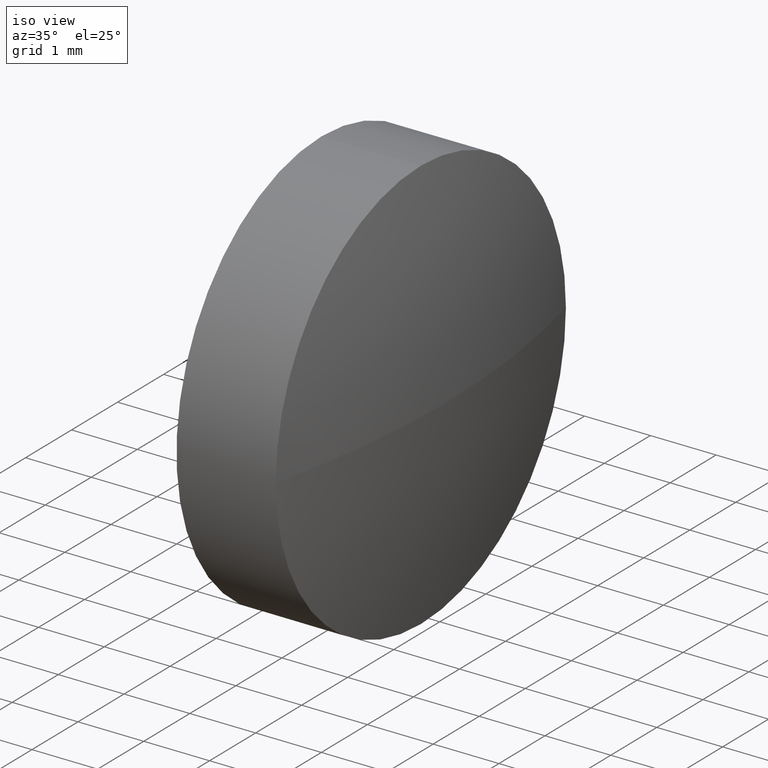
[diagram: clean part render]
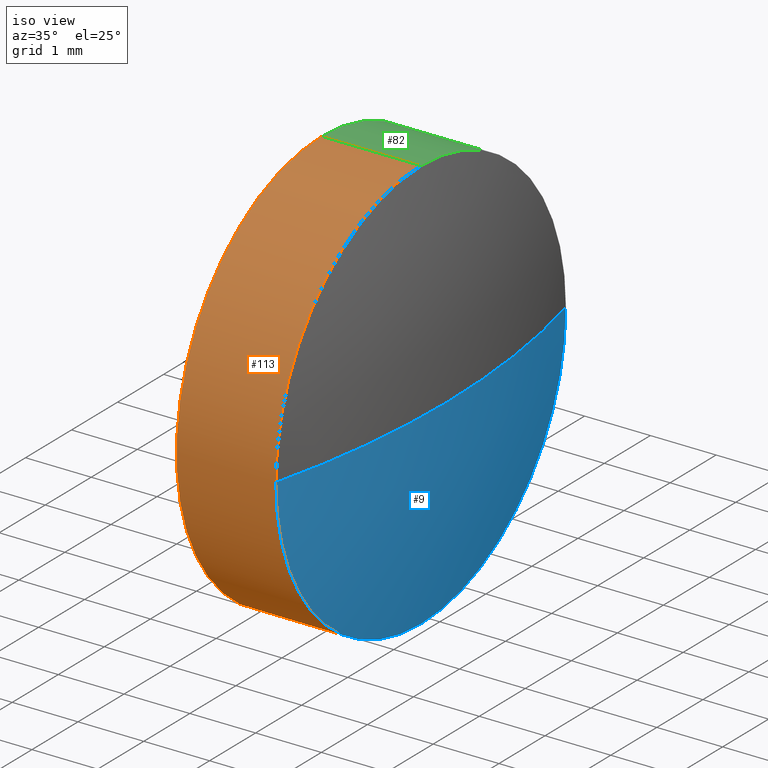
[diagram: same view with three faces highlighted in distinct colors, each labeled with its STEP entity id]
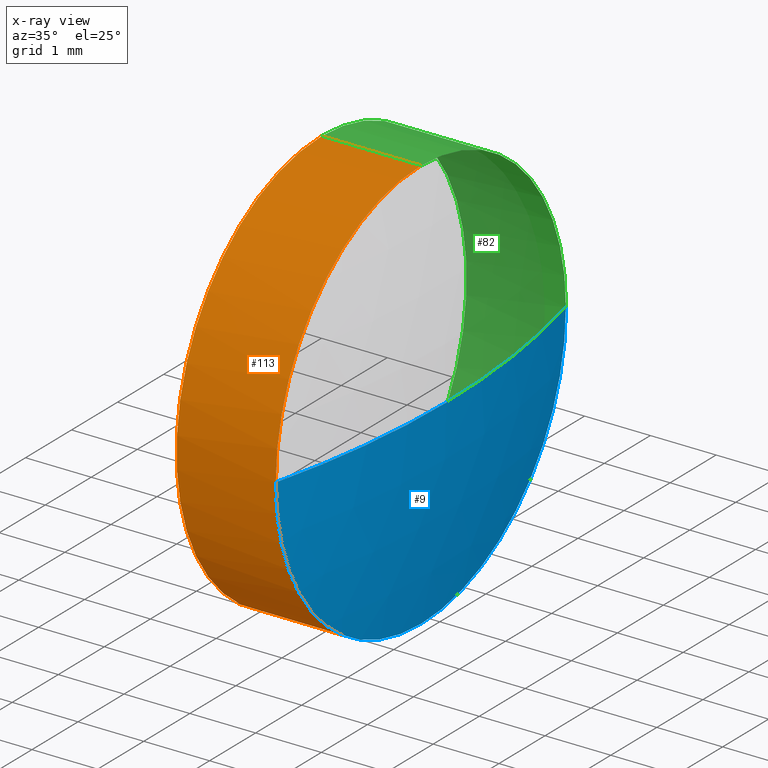
[diagram: x-ray of the same camera — body ghosted, the three highlighted faces saturated]
A machine part, iso view with three faces highlighted in distinct colors.
The next image is the same camera in x-ray (body ghosted, the three faces saturated) — at least one of them is partly hidden behind the body in this view.
Their STEP definitions:

[orange] entity #113 — the highlighted cylindrical surface (partial cylindrical patch) has radius 3.15 mm, axis along (-1, -0, -0).
#5 = CARTESIAN_POINT ( 'NONE',  ( 616.6993345842506600, 86.56717814228176200, 0.0000000000000000000 ) ) ;
#6 = CIRCLE ( 'NONE', #175, 3.149999999999999900 ) ;
#12 = CARTESIAN_POINT ( 'NONE',  ( 619.0150449967926500, 86.56717814228176200, 0.0000000000000000000 ) ) ;
#13 = ORIENTED_EDGE ( 'NONE', *, *, #124, .T. ) ;
#18 = DIRECTION ( 'NONE',  ( 0.0000000000000000000, 0.0000000000000000000, 1.000000000000000000 ) ) ;
#20 = ORIENTED_EDGE ( 'NONE', *, *, #153, .F. ) ;
#25 = EDGE_LOOP ( 'NONE', ( #30, #74, #13, #86, #20 ) ) ;
#30 = ORIENTED_EDGE ( 'NONE', *, *, #119, .F. ) ;
#31 = VECTOR ( 'NONE', #136, 1000.000000000000000 ) ;
#35 = CARTESIAN_POINT ( 'NONE',  ( 619.0150449967926500, 86.56717814228176200, -3.149999999999999900 ) ) ;
#37 = CARTESIAN_POINT ( 'NONE',  ( 619.0150449967926500, 86.56717814228176200, 3.149999999999999900 ) ) ;
#42 = LINE ( 'NONE', #120, #31 ) ;
#45 = AXIS2_PLACEMENT_3D ( 'NONE', #12, #71, #166 ) ;
#52 = AXIS2_PLACEMENT_3D ( 'NONE', #5, #177, #18 ) ;
#61 = VERTEX_POINT ( 'NONE', #114 ) ;
#63 = VERTEX_POINT ( 'NONE', #37 ) ;
#69 = CARTESIAN_POINT ( 'NONE',  ( 619.0150449967926500, 83.41717814228191200, 0.0000000000000000000 ) ) ;
#71 = DIRECTION ( 'NONE',  ( -1.000000000000000000, -0.0000000000000000000, -0.0000000000000000000 ) ) ;
#74 = ORIENTED_EDGE ( 'NONE', *, *, #185, .T. ) ;
#79 = DIRECTION ( 'NONE',  ( -1.000000000000000000, -0.0000000000000000000, -0.0000000000000000000 ) ) ;
#86 = ORIENTED_EDGE ( 'NONE', *, *, #132, .T. ) ;
#91 = DIRECTION ( 'NONE',  ( -1.000000000000000000, -0.0000000000000000000, -0.0000000000000000000 ) ) ;
#96 = CIRCLE ( 'NONE', #186, 3.149999999999999900 ) ;
#105 = VERTEX_POINT ( 'NONE', #35 ) ;
#109 = CYLINDRICAL_SURFACE ( 'NONE', #52, 3.149999999999999900 ) ;
#113 = ADVANCED_FACE ( 'NONE', ( #152 ), #109, .T. ) ;
#114 = CARTESIAN_POINT ( 'NONE',  ( 617.5050449967925500, 86.56717814228176200, 3.149999999999999900 ) ) ;
#119 = EDGE_CURVE ( 'NONE', #105, #128, #131, .T. ) ;
#120 = CARTESIAN_POINT ( 'NONE',  ( 616.6993345842506600, 86.56717814228176200, 3.149999999999999900 ) ) ;
#124 = EDGE_CURVE ( 'NONE', #155, #63, #6, .T. ) ;
#126 = CARTESIAN_POINT ( 'NONE',  ( 616.6993345842506600, 86.56717814228176200, -3.149999999999999900 ) ) ;
#128 = VERTEX_POINT ( 'NONE', #134 ) ;
#131 = LINE ( 'NONE', #126, #162 ) ;
#132 = EDGE_CURVE ( 'NONE', #63, #61, #42, .T. ) ;
#133 = DIRECTION ( 'NONE',  ( 0.0000000000000000000, 0.0000000000000000000, 1.000000000000000000 ) ) ;
#134 = CARTESIAN_POINT ( 'NONE',  ( 617.5050449967925500, 86.56717814228176200, -3.149999999999999900 ) ) ;
#136 = DIRECTION ( 'NONE',  ( -1.000000000000000000, -0.0000000000000000000, -0.0000000000000000000 ) ) ;
#145 = CARTESIAN_POINT ( 'NONE',  ( 619.0150449967926500, 86.56717814228176200, 0.0000000000000000000 ) ) ;
#148 = DIRECTION ( 'NONE',  ( 0.0000000000000000000, 0.0000000000000000000, 1.000000000000000000 ) ) ;
#152 = FACE_OUTER_BOUND ( 'NONE', #25, .T. ) ;
#153 = EDGE_CURVE ( 'NONE', #128, #61, #96, .T. ) ;
#155 = VERTEX_POINT ( 'NONE', #69 ) ;
#162 = VECTOR ( 'NONE', #164, 1000.000000000000000 ) ;
#164 = DIRECTION ( 'NONE',  ( -1.000000000000000000, -0.0000000000000000000, -0.0000000000000000000 ) ) ;
#166 = DIRECTION ( 'NONE',  ( 0.0000000000000000000, 0.0000000000000000000, 1.000000000000000000 ) ) ;
#170 = CIRCLE ( 'NONE', #45, 3.149999999999999900 ) ;
#175 = AXIS2_PLACEMENT_3D ( 'NONE', #145, #91, #133 ) ;
#177 = DIRECTION ( 'NONE',  ( -1.000000000000000000, -0.0000000000000000000, -0.0000000000000000000 ) ) ;
#181 = CARTESIAN_POINT ( 'NONE',  ( 617.5050449967925500, 86.56717814228176200, 0.0000000000000000000 ) ) ;
#185 = EDGE_CURVE ( 'NONE', #105, #155, #170, .T. ) ;
#186 = AXIS2_PLACEMENT_3D ( 'NONE', #181, #79, #148 ) ;

[blue] entity #9 — the highlighted spherical surface has radius 12.9162 mm.
#4 = AXIS2_PLACEMENT_3D ( 'NONE', #104, #184, #106 ) ;
#9 = ADVANCED_FACE ( 'NONE', ( #16 ), #151, .T. ) ;
#10 = CARTESIAN_POINT ( 'NONE',  ( 606.4888911506387800, 86.56717814228196100, 0.0000000000000000000 ) ) ;
#12 = CARTESIAN_POINT ( 'NONE',  ( 619.0150449967926500, 86.56717814228176200, 0.0000000000000000000 ) ) ;
#16 = FACE_OUTER_BOUND ( 'NONE', #141, .T. ) ;
#26 = DIRECTION ( 'NONE',  ( 0.0000000000000000000, 0.0000000000000000000, -1.000000000000000000 ) ) ;
#28 = AXIS2_PLACEMENT_3D ( 'NONE', #44, #167, #144 ) ;
#35 = CARTESIAN_POINT ( 'NONE',  ( 619.0150449967926500, 86.56717814228176200, -3.149999999999999900 ) ) ;
#38 = DIRECTION ( 'NONE',  ( -1.000000000000000000, 0.0000000000000000000, 0.0000000000000000000 ) ) ;
#44 = CARTESIAN_POINT ( 'NONE',  ( 606.4888911506387800, 86.56717814228196100, 0.0000000000000000000 ) ) ;
#45 = AXIS2_PLACEMENT_3D ( 'NONE', #12, #71, #166 ) ;
#48 = CIRCLE ( 'NONE', #161, 12.91615384615385400 ) ;
#51 = ORIENTED_EDGE ( 'NONE', *, *, #157, .F. ) ;
#66 = CARTESIAN_POINT ( 'NONE',  ( 619.4050449967926400, 86.56717814228196100, 0.0000000000000000000 ) ) ;
#67 = CIRCLE ( 'NONE', #4, 3.149999999999999900 ) ;
#69 = CARTESIAN_POINT ( 'NONE',  ( 619.0150449967926500, 83.41717814228191200, 0.0000000000000000000 ) ) ;
#71 = DIRECTION ( 'NONE',  ( -1.000000000000000000, -0.0000000000000000000, -0.0000000000000000000 ) ) ;
#73 = AXIS2_PLACEMENT_3D ( 'NONE', #10, #143, #160 ) ;
#85 = CIRCLE ( 'NONE', #28, 12.91615384615382700 ) ;
#97 = ORIENTED_EDGE ( 'NONE', *, *, #185, .F. ) ;
#104 = CARTESIAN_POINT ( 'NONE',  ( 619.0150449967926500, 86.56717814228176200, 0.0000000000000000000 ) ) ;
#105 = VERTEX_POINT ( 'NONE', #35 ) ;
#106 = DIRECTION ( 'NONE',  ( 0.0000000000000000000, 0.0000000000000000000, 1.000000000000000000 ) ) ;
#107 = CARTESIAN_POINT ( 'NONE',  ( 606.4888911506387800, 86.56717814228196100, 0.0000000000000000000 ) ) ;
#116 = VERTEX_POINT ( 'NONE', #66 ) ;
#121 = EDGE_CURVE ( 'NONE', #116, #155, #48, .T. ) ;
#125 = ORIENTED_EDGE ( 'NONE', *, *, #149, .F. ) ;
#141 = EDGE_LOOP ( 'NONE', ( #125, #172, #97, #51 ) ) ;
#142 = CARTESIAN_POINT ( 'NONE',  ( 619.0150449967926500, 89.71717814228181000, 3.857637417313981300E-016 ) ) ;
#143 = DIRECTION ( 'NONE',  ( 0.0000000000000000000, 0.0000000000000000000, 1.000000000000000000 ) ) ;
#144 = DIRECTION ( 'NONE',  ( 0.0000000000000000000, -1.000000000000000000, -1.224646799147353700E-016 ) ) ;
#149 = EDGE_CURVE ( 'NONE', #116, #168, #85, .T. ) ;
#151 = SPHERICAL_SURFACE ( 'NONE', #73, 12.91615384615383100 ) ;
#155 = VERTEX_POINT ( 'NONE', #69 ) ;
#157 = EDGE_CURVE ( 'NONE', #168, #105, #67, .T. ) ;
#160 = DIRECTION ( 'NONE',  ( 0.0000000000000000000, -1.000000000000000000, 0.0000000000000000000 ) ) ;
#161 = AXIS2_PLACEMENT_3D ( 'NONE', #107, #26, #38 ) ;
#166 = DIRECTION ( 'NONE',  ( 0.0000000000000000000, 0.0000000000000000000, 1.000000000000000000 ) ) ;
#167 = DIRECTION ( 'NONE',  ( 0.0000000000000000000, -1.224646799147353200E-016, 1.000000000000000000 ) ) ;
#168 = VERTEX_POINT ( 'NONE', #142 ) ;
#170 = CIRCLE ( 'NONE', #45, 3.149999999999999900 ) ;
#172 = ORIENTED_EDGE ( 'NONE', *, *, #121, .T. ) ;
#184 = DIRECTION ( 'NONE',  ( -1.000000000000000000, -0.0000000000000000000, -0.0000000000000000000 ) ) ;
#185 = EDGE_CURVE ( 'NONE', #105, #155, #170, .T. ) ;

[green] entity #82 — the highlighted cylindrical surface (partial cylindrical patch) has radius 3.15 mm, axis along (-1, -0, -0).
#3 = EDGE_LOOP ( 'NONE', ( #176, #147, #163, #174, #94 ) ) ;
#4 = AXIS2_PLACEMENT_3D ( 'NONE', #104, #184, #106 ) ;
#7 = CARTESIAN_POINT ( 'NONE',  ( 619.0150449967926500, 86.56717814228176200, 0.0000000000000000000 ) ) ;
#21 = DIRECTION ( 'NONE',  ( -1.000000000000000000, -0.0000000000000000000, -0.0000000000000000000 ) ) ;
#22 = CARTESIAN_POINT ( 'NONE',  ( 617.5050449967925500, 86.56717814228176200, 0.0000000000000000000 ) ) ;
#31 = VECTOR ( 'NONE', #136, 1000.000000000000000 ) ;
#34 = CARTESIAN_POINT ( 'NONE',  ( 616.6993345842506600, 86.56717814228176200, 0.0000000000000000000 ) ) ;
#35 = CARTESIAN_POINT ( 'NONE',  ( 619.0150449967926500, 86.56717814228176200, -3.149999999999999900 ) ) ;
#36 = CIRCLE ( 'NONE', #93, 3.149999999999999900 ) ;
#37 = CARTESIAN_POINT ( 'NONE',  ( 619.0150449967926500, 86.56717814228176200, 3.149999999999999900 ) ) ;
#42 = LINE ( 'NONE', #120, #31 ) ;
#47 = EDGE_CURVE ( 'NONE', #61, #128, #159, .T. ) ;
#50 = AXIS2_PLACEMENT_3D ( 'NONE', #34, #56, #100 ) ;
#56 = DIRECTION ( 'NONE',  ( -1.000000000000000000, -0.0000000000000000000, -0.0000000000000000000 ) ) ;
#61 = VERTEX_POINT ( 'NONE', #114 ) ;
#63 = VERTEX_POINT ( 'NONE', #37 ) ;
#67 = CIRCLE ( 'NONE', #4, 3.149999999999999900 ) ;
#72 = EDGE_CURVE ( 'NONE', #63, #168, #36, .T. ) ;
#82 = ADVANCED_FACE ( 'NONE', ( #139 ), #98, .T. ) ;
#89 = DIRECTION ( 'NONE',  ( -1.000000000000000000, -0.0000000000000000000, -0.0000000000000000000 ) ) ;
#93 = AXIS2_PLACEMENT_3D ( 'NONE', #7, #89, #129 ) ;
#94 = ORIENTED_EDGE ( 'NONE', *, *, #72, .T. ) ;
#98 = CYLINDRICAL_SURFACE ( 'NONE', #50, 3.149999999999999900 ) ;
#100 = DIRECTION ( 'NONE',  ( 0.0000000000000000000, 0.0000000000000000000, 1.000000000000000000 ) ) ;
#101 = AXIS2_PLACEMENT_3D ( 'NONE', #22, #21, #130 ) ;
#104 = CARTESIAN_POINT ( 'NONE',  ( 619.0150449967926500, 86.56717814228176200, 0.0000000000000000000 ) ) ;
#105 = VERTEX_POINT ( 'NONE', #35 ) ;
#106 = DIRECTION ( 'NONE',  ( 0.0000000000000000000, 0.0000000000000000000, 1.000000000000000000 ) ) ;
#114 = CARTESIAN_POINT ( 'NONE',  ( 617.5050449967925500, 86.56717814228176200, 3.149999999999999900 ) ) ;
#119 = EDGE_CURVE ( 'NONE', #105, #128, #131, .T. ) ;
#120 = CARTESIAN_POINT ( 'NONE',  ( 616.6993345842506600, 86.56717814228176200, 3.149999999999999900 ) ) ;
#126 = CARTESIAN_POINT ( 'NONE',  ( 616.6993345842506600, 86.56717814228176200, -3.149999999999999900 ) ) ;
#128 = VERTEX_POINT ( 'NONE', #134 ) ;
#129 = DIRECTION ( 'NONE',  ( 0.0000000000000000000, 0.0000000000000000000, 1.000000000000000000 ) ) ;
#130 = DIRECTION ( 'NONE',  ( 0.0000000000000000000, 0.0000000000000000000, 1.000000000000000000 ) ) ;
#131 = LINE ( 'NONE', #126, #162 ) ;
#132 = EDGE_CURVE ( 'NONE', #63, #61, #42, .T. ) ;
#134 = CARTESIAN_POINT ( 'NONE',  ( 617.5050449967925500, 86.56717814228176200, -3.149999999999999900 ) ) ;
#136 = DIRECTION ( 'NONE',  ( -1.000000000000000000, -0.0000000000000000000, -0.0000000000000000000 ) ) ;
#139 = FACE_OUTER_BOUND ( 'NONE', #3, .T. ) ;
#142 = CARTESIAN_POINT ( 'NONE',  ( 619.0150449967926500, 89.71717814228181000, 3.857637417313981300E-016 ) ) ;
#147 = ORIENTED_EDGE ( 'NONE', *, *, #119, .T. ) ;
#157 = EDGE_CURVE ( 'NONE', #168, #105, #67, .T. ) ;
#159 = CIRCLE ( 'NONE', #101, 3.149999999999999900 ) ;
#162 = VECTOR ( 'NONE', #164, 1000.000000000000000 ) ;
#163 = ORIENTED_EDGE ( 'NONE', *, *, #47, .F. ) ;
#164 = DIRECTION ( 'NONE',  ( -1.000000000000000000, -0.0000000000000000000, -0.0000000000000000000 ) ) ;
#168 = VERTEX_POINT ( 'NONE', #142 ) ;
#174 = ORIENTED_EDGE ( 'NONE', *, *, #132, .F. ) ;
#176 = ORIENTED_EDGE ( 'NONE', *, *, #157, .T. ) ;
#184 = DIRECTION ( 'NONE',  ( -1.000000000000000000, -0.0000000000000000000, -0.0000000000000000000 ) ) ;